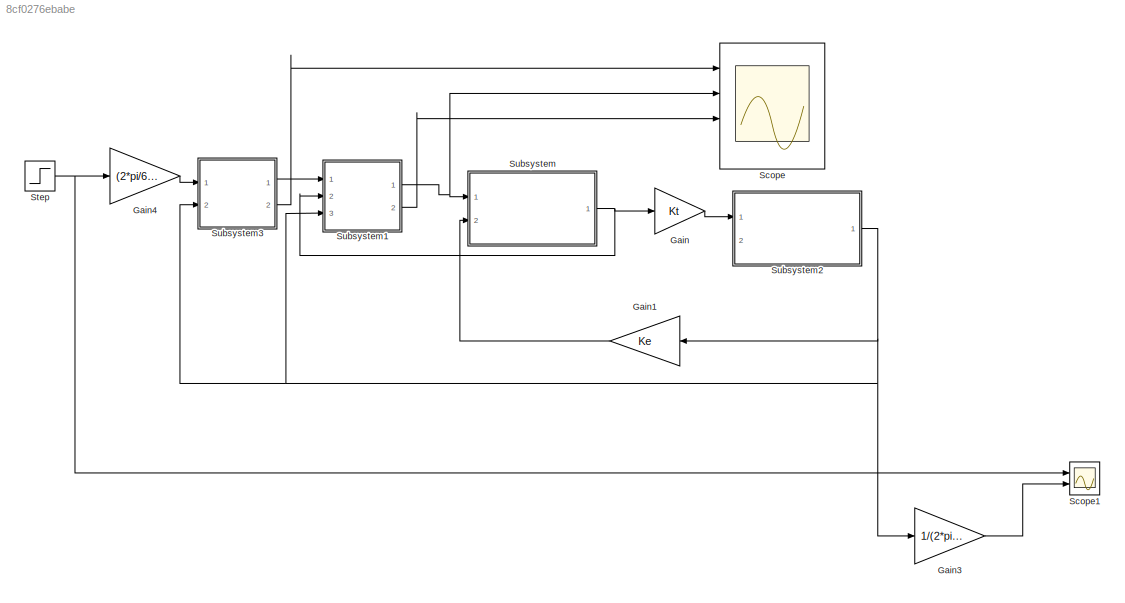
MODEL slx_8cf0276ebabe
KIND model
CONFIG AbsTol = auto
CONFIG EnableMultiTasking = off
CONFIG FixedStep = auto
CONFIG MaxStep = 1e-4
CONFIG MinStep = auto
CONFIG RelTol = 1e-3
CONFIG SampleTimeConstraint = Unconstrained
CONFIG Solver = VariableStepAuto
CONFIG SolverName = VariableStepAuto
CONFIG StartTime = 0.0
CONFIG StopTime = 5
BLOCK [Gain] Gain
  Gain = Kt
  OutDataTypeStr = Inherit: Inherit via internal rule
  ParamDataTypeStr = Inherit: Inherit via internal rule
  SaturateOnIntegerOverflow = off
BLOCK [Gain] Gain1
  Gain = Ke
  OutDataTypeStr = Inherit: Inherit via internal rule
  ParamDataTypeStr = Inherit: Inherit via internal rule
  SaturateOnIntegerOverflow = off
BLOCK [Gain] Gain3
  Gain = 1/(2*pi/60)
  OutDataTypeStr = Inherit: Inherit via internal rule
  ParamDataTypeStr = Inherit: Inherit via internal rule
  SaturateOnIntegerOverflow = off
BLOCK [Gain] Gain4
  Gain = (2*pi/60)
  OutDataTypeStr = Inherit: Inherit via internal rule
  ParamDataTypeStr = Inherit: Inherit via internal rule
  SaturateOnIntegerOverflow = off
BLOCK [Scope] Scope
  Floating = off
  NumInputPorts = 4
  Ports = [4]
  ScopeSpecificationString = Simulink.scopes.TimeScopeBlockCfg('CurrentConfiguration', extmgr.ConfigurationSet(extmgr.Configuration('Core','General UI',true),extmgr.Configuration('Core','Source UI',true),extmgr.Configuration('Sources','WiredSimulink',true),extmgr.Configuration('Visuals','Time Domain',true,'SerializedDisplays',{struct('MinYLimReal','-61.39543','MaxYLimReal','235.52064','YLabelReal','','MinYLimMag','0.00000','M...<+1805ch>
BLOCK [Scope] Scope1
  Floating = off
  NumInputPorts = 2
  Ports = [2]
  ScopeSpecificationString = Simulink.scopes.TimeScopeBlockCfg('CurrentConfiguration', extmgr.ConfigurationSet(extmgr.Configuration('Core','General UI',true),extmgr.Configuration('Core','Source UI',true),extmgr.Configuration('Sources','WiredSimulink',true,'DataLoggingVariableName','ScopeData1'),extmgr.Configuration('Visuals','Time Domain',true,'SerializedDisplays',{struct('MinYLimReal','-440.61146','MaxYLimReal','3965.50314',...<+1873ch>
BLOCK [Step] Step
  After = 2000
  SampleTime = 0
  Time = 0.1
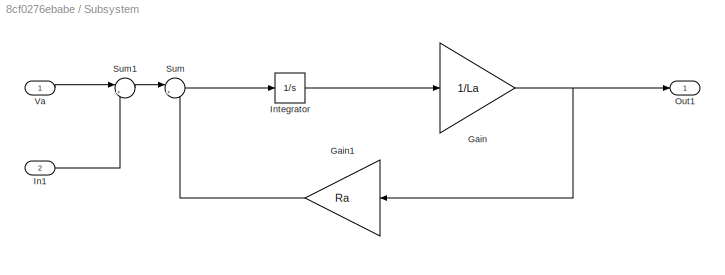
BLOCK [SubSystem] Subsystem
  Ports = [2, 1]
  RequestExecContextInheritance = off
BLOCK [Gain] Subsystem/Gain
  Gain = 1/La
  OutDataTypeStr = Inherit: Inherit via internal rule
  ParamDataTypeStr = Inherit: Inherit via internal rule
  SaturateOnIntegerOverflow = off
BLOCK [Gain] Subsystem/Gain1
  Gain = Ra
  OutDataTypeStr = Inherit: Inherit via internal rule
  ParamDataTypeStr = Inherit: Inherit via internal rule
  SaturateOnIntegerOverflow = off
BLOCK [Inport] Subsystem/In1
  IconDisplay = Port number
  Port = 2
BLOCK [Integrator] Subsystem/Integrator
  Ports = [1, 1]
BLOCK [Outport] Subsystem/Out1
  IconDisplay = Port number
BLOCK [Sum] Subsystem/Sum
  IconShape = round
  InputSameDT = off
  Inputs = |+-
  OutDataTypeStr = Inherit: Inherit via internal rule
  Ports = [2, 1]
  SaturateOnIntegerOverflow = off
BLOCK [Sum] Subsystem/Sum1
  IconShape = round
  InputSameDT = off
  Inputs = |+-
  OutDataTypeStr = Inherit: Inherit via internal rule
  Ports = [2, 1]
  SaturateOnIntegerOverflow = off
BLOCK [Inport] Subsystem/Va
  IconDisplay = Port number
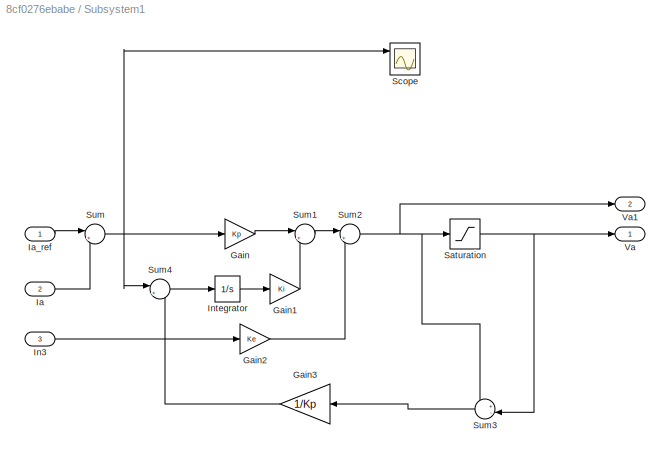
BLOCK [SubSystem] Subsystem1
  Ports = [3, 2]
  RequestExecContextInheritance = off
BLOCK [Gain] Subsystem1/Gain
  Gain = Kp
  OutDataTypeStr = Inherit: Inherit via internal rule
  ParamDataTypeStr = Inherit: Inherit via internal rule
  SaturateOnIntegerOverflow = off
BLOCK [Gain] Subsystem1/Gain1
  Gain = Ki
  OutDataTypeStr = Inherit: Inherit via internal rule
  ParamDataTypeStr = Inherit: Inherit via internal rule
  SaturateOnIntegerOverflow = off
BLOCK [Gain] Subsystem1/Gain2
  Gain = Ke
  OutDataTypeStr = Inherit: Inherit via internal rule
  ParamDataTypeStr = Inherit: Inherit via internal rule
  SaturateOnIntegerOverflow = off
BLOCK [Gain] Subsystem1/Gain3
  Gain = 1/Kp
  OutDataTypeStr = Inherit: Inherit via internal rule
  ParamDataTypeStr = Inherit: Inherit via internal rule
  SaturateOnIntegerOverflow = off
BLOCK [Inport] Subsystem1/Ia
  IconDisplay = Port number
  Port = 2
BLOCK [Inport] Subsystem1/Ia_ref
  IconDisplay = Port number
BLOCK [Inport] Subsystem1/In3
  IconDisplay = Port number
  Port = 3
BLOCK [Integrator] Subsystem1/Integrator
  Ports = [1, 1]
BLOCK [Saturate] Subsystem1/Saturation
  InputPortMap = u0
  LowerLimit = -100
  Ports = [1, 1]
  UpperLimit = 100
BLOCK [Scope] Subsystem1/Scope
  Floating = off
  NumInputPorts = 3
  Ports = [3]
  ScopeSpecificationString = Simulink.scopes.TimeScopeBlockCfg('CurrentConfiguration', extmgr.ConfigurationSet(extmgr.Configuration('Core','General UI',true),extmgr.Configuration('Core','Source UI',true),extmgr.Configuration('Sources','WiredSimulink',true,'DataLoggingVariableName','ScopeData2'),extmgr.Configuration('Visuals','Time Domain',true),extmgr.Configuration('Tools','Plot Navigation',true),extmgr.Configuration('Tools',...<+40ch>
BLOCK [Sum] Subsystem1/Sum
  IconShape = round
  InputSameDT = off
  Inputs = |+-
  OutDataTypeStr = Inherit: Inherit via internal rule
  Ports = [2, 1]
  SaturateOnIntegerOverflow = off
BLOCK [Sum] Subsystem1/Sum1
  IconShape = round
  InputSameDT = off
  Inputs = |++
  OutDataTypeStr = Inherit: Inherit via internal rule
  Ports = [2, 1]
  SaturateOnIntegerOverflow = off
BLOCK [Sum] Subsystem1/Sum2
  IconShape = round
  InputSameDT = off
  Inputs = |++
  OutDataTypeStr = Inherit: Inherit via internal rule
  Ports = [2, 1]
  SaturateOnIntegerOverflow = off
BLOCK [Sum] Subsystem1/Sum3
  IconShape = round
  InputSameDT = off
  Inputs = +-|
  OutDataTypeStr = Inherit: Inherit via internal rule
  Ports = [2, 1]
  SaturateOnIntegerOverflow = off
BLOCK [Sum] Subsystem1/Sum4
  IconShape = round
  InputSameDT = off
  Inputs = |+-
  OutDataTypeStr = Inherit: Inherit via internal rule
  Ports = [2, 1]
  SaturateOnIntegerOverflow = off
BLOCK [Outport] Subsystem1/Va
  IconDisplay = Port number
BLOCK [Outport] Subsystem1/Va1
  IconDisplay = Port number
  Port = 2
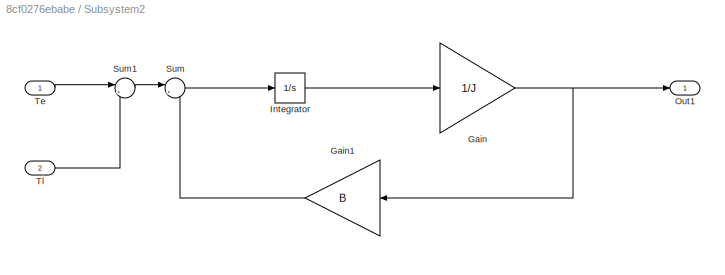
BLOCK [SubSystem] Subsystem2
  Ports = [2, 1]
  RequestExecContextInheritance = off
BLOCK [Gain] Subsystem2/Gain
  Gain = 1/J
  OutDataTypeStr = Inherit: Inherit via internal rule
  ParamDataTypeStr = Inherit: Inherit via internal rule
  SaturateOnIntegerOverflow = off
BLOCK [Gain] Subsystem2/Gain1
  Gain = B
  OutDataTypeStr = Inherit: Inherit via internal rule
  ParamDataTypeStr = Inherit: Inherit via internal rule
  SaturateOnIntegerOverflow = off
BLOCK [Integrator] Subsystem2/Integrator
  Ports = [1, 1]
BLOCK [Outport] Subsystem2/Out1
  IconDisplay = Port number
BLOCK [Sum] Subsystem2/Sum
  IconShape = round
  InputSameDT = off
  Inputs = |+-
  OutDataTypeStr = Inherit: Inherit via internal rule
  Ports = [2, 1]
  SaturateOnIntegerOverflow = off
BLOCK [Sum] Subsystem2/Sum1
  IconShape = round
  InputSameDT = off
  Inputs = |+-
  OutDataTypeStr = Inherit: Inherit via internal rule
  Ports = [2, 1]
  SaturateOnIntegerOverflow = off
BLOCK [Inport] Subsystem2/Te
  IconDisplay = Port number
BLOCK [Inport] Subsystem2/Tl
  IconDisplay = Port number
  Port = 2
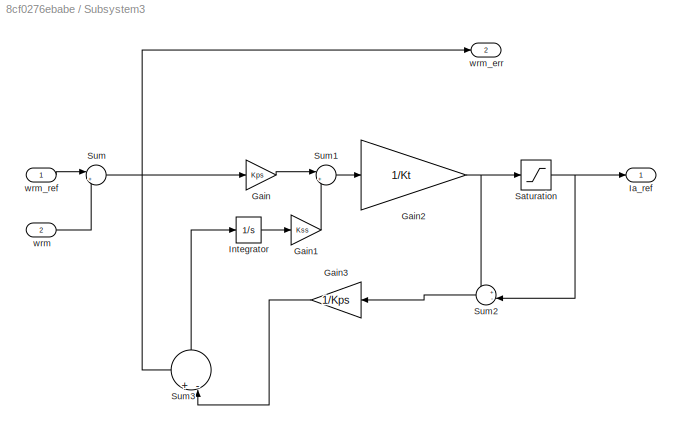
BLOCK [SubSystem] Subsystem3
  Ports = [2, 2]
  RequestExecContextInheritance = off
BLOCK [Gain] Subsystem3/Gain
  Gain = Kps
  OutDataTypeStr = Inherit: Inherit via internal rule
  ParamDataTypeStr = Inherit: Inherit via internal rule
  SaturateOnIntegerOverflow = off
BLOCK [Gain] Subsystem3/Gain1
  Gain = Kss
  OutDataTypeStr = Inherit: Inherit via internal rule
  ParamDataTypeStr = Inherit: Inherit via internal rule
  SaturateOnIntegerOverflow = off
BLOCK [Gain] Subsystem3/Gain2
  Gain = 1/Kt
  OutDataTypeStr = Inherit: Inherit via internal rule
  ParamDataTypeStr = Inherit: Inherit via internal rule
  SaturateOnIntegerOverflow = off
BLOCK [Gain] Subsystem3/Gain3
  Gain = 1/Kps
  OutDataTypeStr = Inherit: Inherit via internal rule
  ParamDataTypeStr = Inherit: Inherit via internal rule
  SaturateOnIntegerOverflow = off
BLOCK [Outport] Subsystem3/Ia_ref 
  IconDisplay = Port number
BLOCK [Integrator] Subsystem3/Integrator
  Ports = [1, 1]
BLOCK [Saturate] Subsystem3/Saturation
  InputPortMap = u0
  LowerLimit = -200
  Ports = [1, 1]
  UpperLimit = 200
BLOCK [Sum] Subsystem3/Sum
  IconShape = round
  InputSameDT = off
  Inputs = |+-
  OutDataTypeStr = Inherit: Inherit via internal rule
  Ports = [2, 1]
  SaturateOnIntegerOverflow = off
BLOCK [Sum] Subsystem3/Sum1
  IconShape = round
  InputSameDT = off
  Inputs = |++
  OutDataTypeStr = Inherit: Inherit via internal rule
  Ports = [2, 1]
  SaturateOnIntegerOverflow = off
BLOCK [Sum] Subsystem3/Sum2
  IconShape = round
  InputSameDT = off
  Inputs = +-|
  OutDataTypeStr = Inherit: Inherit via internal rule
  Ports = [2, 1]
  SaturateOnIntegerOverflow = off
BLOCK [Sum] Subsystem3/Sum3
  IconShape = round
  InputSameDT = off
  Inputs = +-|
  OutDataTypeStr = Inherit: Inherit via internal rule
  Ports = [2, 1]
  SaturateOnIntegerOverflow = off
BLOCK [Inport] Subsystem3/wrm
  IconDisplay = Port number
  Port = 2
BLOCK [Outport] Subsystem3/wrm_err 
  IconDisplay = Port number
  Port = 2
BLOCK [Inport] Subsystem3/wrm_ref
  IconDisplay = Port number
LINE Gain1:1 -> Subsystem:2
LINE Gain3:1 -> Scope1:2
LINE Gain4:1 -> Subsystem3:1
LINE Gain:1 -> Subsystem2:1
NET Step:1 -> Gain4:1, Scope1:1
LINE Subsystem/Gain1:1 -> Subsystem/Sum:2
NET Subsystem/Gain:1 -> Subsystem/Gain1:1, Subsystem/Out1:1
LINE Subsystem/In1:1 -> Subsystem/Sum1:2
LINE Subsystem/Integrator:1 -> Subsystem/Gain:1
LINE Subsystem/Sum1:1 -> Subsystem/Sum:1
LINE Subsystem/Sum:1 -> Subsystem/Integrator:1
LINE Subsystem/Va:1 -> Subsystem/Sum1:1
LINE Subsystem1/Gain1:1 -> Subsystem1/Sum1:2
LINE Subsystem1/Gain2:1 -> Subsystem1/Sum2:2
LINE Subsystem1/Gain3:1 -> Subsystem1/Sum4:2
LINE Subsystem1/Gain:1 -> Subsystem1/Sum1:1
LINE Subsystem1/Ia:1 -> Subsystem1/Sum:2
LINE Subsystem1/Ia_ref:1 -> Subsystem1/Sum:1
LINE Subsystem1/In3:1 -> Subsystem1/Gain2:1
LINE Subsystem1/Integrator:1 -> Subsystem1/Gain1:1
NET Subsystem1/Saturation:1 -> Subsystem1/Sum3:2, Subsystem1/Va:1
LINE Subsystem1/Sum1:1 -> Subsystem1/Sum2:1
NET Subsystem1/Sum2:1 -> Subsystem1/Saturation:1, Subsystem1/Sum3:1, Subsystem1/Va1:1
LINE Subsystem1/Sum3:1 -> Subsystem1/Gain3:1
LINE Subsystem1/Sum4:1 -> Subsystem1/Integrator:1
NET Subsystem1/Sum:1 -> Subsystem1/Gain:1, Subsystem1/Scope:1, Subsystem1/Sum4:1
NET Subsystem1:1 -> Scope:2, Subsystem:1
LINE Subsystem1:2 -> Scope:3
LINE Subsystem2/Gain1:1 -> Subsystem2/Sum:2
NET Subsystem2/Gain:1 -> Subsystem2/Gain1:1, Subsystem2/Out1:1
LINE Subsystem2/Integrator:1 -> Subsystem2/Gain:1
LINE Subsystem2/Sum1:1 -> Subsystem2/Sum:1
LINE Subsystem2/Sum:1 -> Subsystem2/Integrator:1
LINE Subsystem2/Te:1 -> Subsystem2/Sum1:1
LINE Subsystem2/Tl:1 -> Subsystem2/Sum1:2
NET Subsystem2:1 -> Gain1:1, Gain3:1, Subsystem1:3, Subsystem3:2
LINE Subsystem3/Gain1:1 -> Subsystem3/Sum1:2
NET Subsystem3/Gain2:1 -> Subsystem3/Saturation:1, Subsystem3/Sum2:1
LINE Subsystem3/Gain3:1 -> Subsystem3/Sum3:2
LINE Subsystem3/Gain:1 -> Subsystem3/Sum1:1
LINE Subsystem3/Integrator:1 -> Subsystem3/Gain1:1
NET Subsystem3/Saturation:1 -> Subsystem3/Ia_ref :1, Subsystem3/Sum2:2
LINE Subsystem3/Sum1:1 -> Subsystem3/Gain2:1
LINE Subsystem3/Sum2:1 -> Subsystem3/Gain3:1
LINE Subsystem3/Sum3:1 -> Subsystem3/Integrator:1
NET Subsystem3/Sum:1 -> Subsystem3/Gain:1, Subsystem3/Sum3:1, Subsystem3/wrm_err :1
LINE Subsystem3/wrm:1 -> Subsystem3/Sum:2
LINE Subsystem3/wrm_ref:1 -> Subsystem3/Sum:1
LINE Subsystem3:1 -> Subsystem1:1
LINE Subsystem3:2 -> Scope:1
NET Subsystem:1 -> Gain:1, Subsystem1:2
note: NET lines group one-source signal fan-out (src -> all destinations, sorted); 1:1 wires keep LINE
